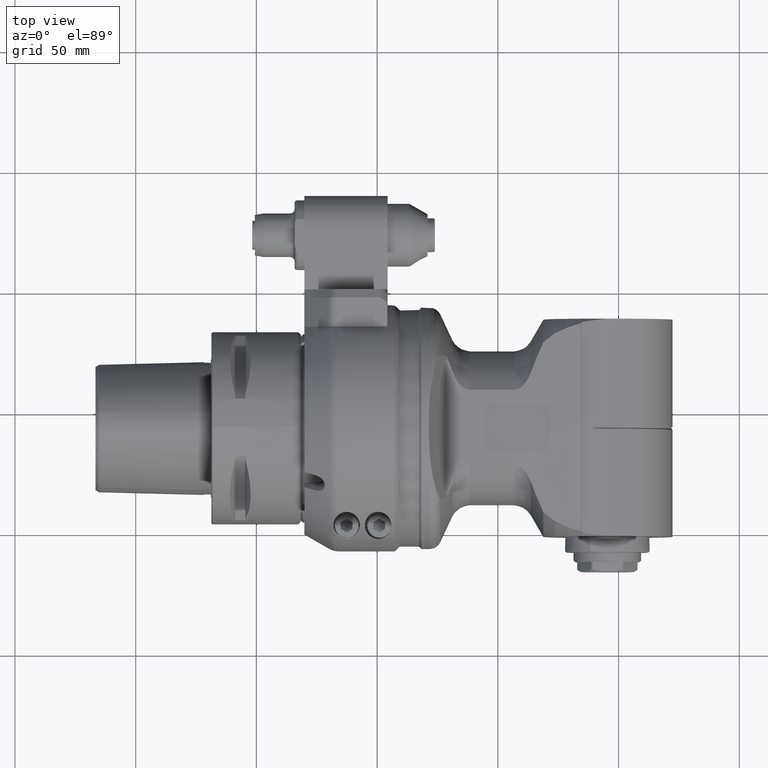
[diagram: clean part render]
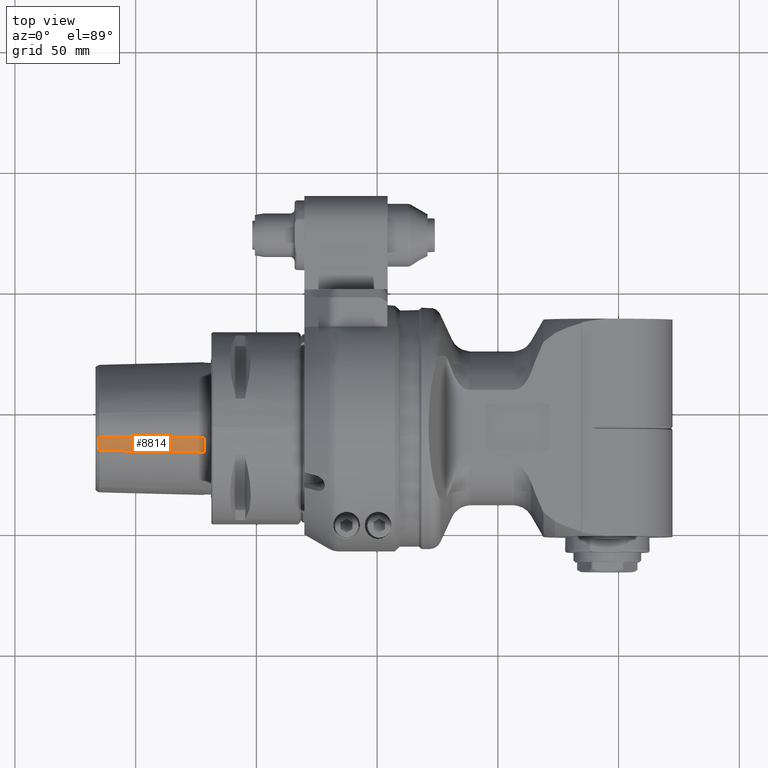
[diagram: same view with one face highlighted and labeled with its STEP entity id]
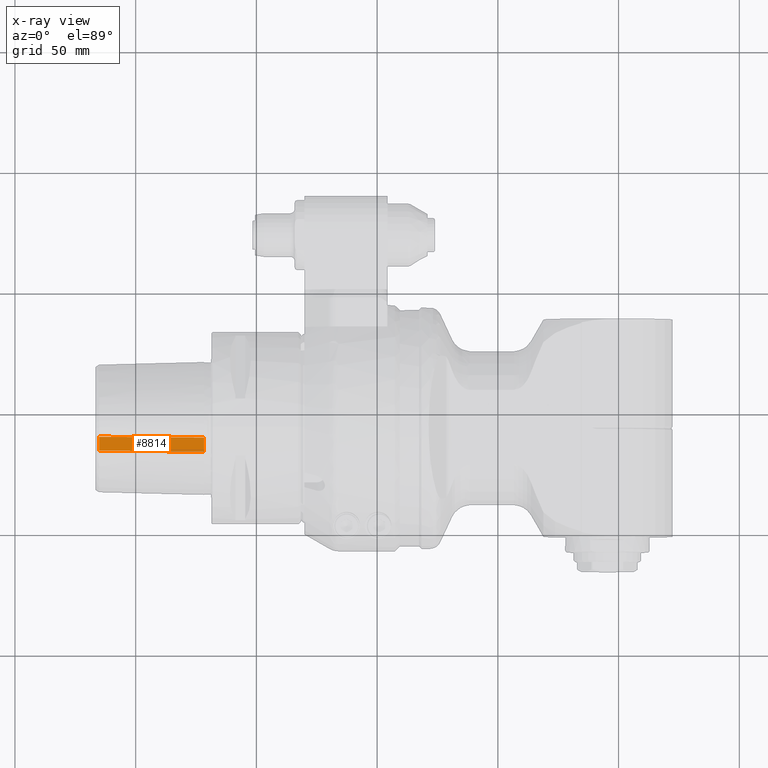
[diagram: x-ray of the same camera — body ghosted, the highlighted face saturated]
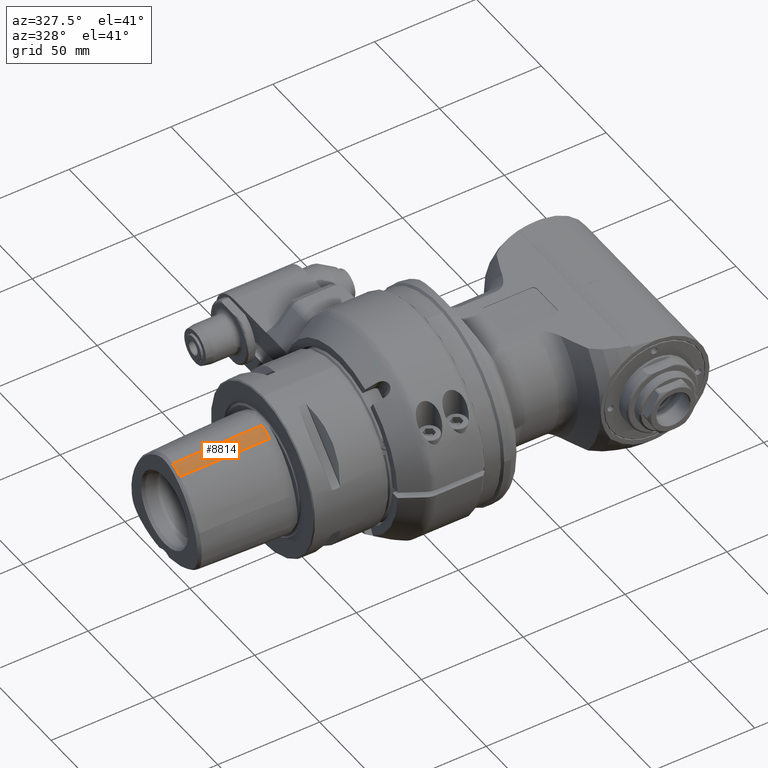
[diagram: same view with one face highlighted and labeled with its STEP entity id]
A machine part, top view. The second image highlights one B-rep face of the part: STEP entity #8814.
The next image is the same camera in x-ray: the body ghosted, the highlighted face saturated — about 0% of this face is hidden behind the body in this view.
A second angle (auxiliary view) of the same face is appended — the face is thin or edge-on in the first view.
In plain terms, the highlighted face is a freeform B-spline surface patch.
Its self-contained STEP definition (entity closure, byte-faithful):
#36=B_SPLINE_SURFACE_WITH_KNOTS('',3,3,((#60654,#60655,#60656,#60657),(#60658,
#60659,#60660,#60661),(#60662,#60663,#60664,#60665),(#60666,#60667,#60668,
#60669),(#60670,#60671,#60672,#60673),(#60674,#60675,#60676,#60677),(#60678,
#60679,#60680,#60681),(#60682,#60683,#60684,#60685),(#60686,#60687,#60688,
#60689),(#60690,#60691,#60692,#60693)),.UNSPECIFIED.,.F.,.F.,.F.,(4,1,1,
1,1,1,1,4),(4,4),(-0.01452051298034,0.,0.4000001957933,0.5000002447416,
0.6000001822672,0.8000000911336,1.,1.014021204512),(0.3837668077506,0.6087745893907),
 .UNSPECIFIED.);
#535=B_SPLINE_CURVE_WITH_KNOTS('',3,(#56977,#56978,#56979,#56980,#56981,
#56982),.UNSPECIFIED.,.F.,.F.,(4,2,4),(-0.659128630313822,-0.306557897745265,
-5.4383423463596E-5),.UNSPECIFIED.);
#564=B_SPLINE_CURVE_WITH_KNOTS('',3,(#59815,#59816,#59817,#59818,#59819,
#59820,#59821,#59822,#59823,#59824,#59825,#59826,#59827,#59828,#59829,#59830,
#59831,#59832),.UNSPECIFIED.,.F.,.F.,(4,2,2,2,2,2,2,2,4),(-0.627534763400894,
-0.598249758085073,-0.568989368502959,-0.510346976372382,-0.392572580527042,
-0.313592103343379,-0.274586396055018,-0.20613444236929,-9.99999767548054E-7),
 .UNSPECIFIED.);
#1628=FACE_OUTER_BOUND('',#2224,.T.);
#2224=EDGE_LOOP('',(#8048,#8049,#8050,#8051));
#2791=LINE('',#60653,#3358);
#2792=LINE('',#60694,#3359);
#3358=VECTOR('',#12265,43.5141947065388);
#3359=VECTOR('',#12266,43.5141957843903);
#4095=VERTEX_POINT('',#56967);
#4096=VERTEX_POINT('',#56976);
#4198=VERTEX_POINT('',#59773);
#4199=VERTEX_POINT('',#59814);
#5298=EDGE_CURVE('',#4096,#4095,#535,.T.);
#5471=EDGE_CURVE('',#4199,#4198,#564,.T.);
#5487=EDGE_CURVE('',#4096,#4198,#2791,.T.);
#5488=EDGE_CURVE('',#4095,#4199,#2792,.T.);
#8048=ORIENTED_EDGE('',*,*,#5487,.F.);
#8049=ORIENTED_EDGE('',*,*,#5298,.T.);
#8050=ORIENTED_EDGE('',*,*,#5488,.T.);
#8051=ORIENTED_EDGE('',*,*,#5471,.T.);
#8814=ADVANCED_FACE('',(#1628),#36,.T.);
#12265=DIRECTION('',(-0.999684677486109,0.0139997393578312,-0.0208459323947514));
#12266=DIRECTION('',(-0.999684640340873,0.0078955053841838,-0.0238386421858907));
#56967=CARTESIAN_POINT('',(-81.0000000003208,-4.34512318675063,28.7391449111022));
#56976=CARTESIAN_POINT('',(-80.9999999997678,-10.2207980996593,25.7755481703052));
#56977=CARTESIAN_POINT('Ctrl Pts',(-80.999999999999,-10.2207980996577,25.7755481703028));
#56978=CARTESIAN_POINT('Ctrl Pts',(-80.999999999999,-9.23870735431125,26.4352556000811));
#56979=CARTESIAN_POINT('Ctrl Pts',(-81.0000000000038,-8.2221268228982,27.0355645514729));
#56980=CARTESIAN_POINT('Ctrl Pts',(-81.0000000000038,-6.25771583904378,
28.0171834151023));
#56981=CARTESIAN_POINT('Ctrl Pts',(-80.999999999999,-5.31496701955036,28.4178520478634));
#56982=CARTESIAN_POINT('Ctrl Pts',(-80.999999999999,-4.34512318675398,28.7391449111123));
#59773=CARTESIAN_POINT('',(-124.500472606784,-9.61161077889696,24.8684543004316));
#59814=CARTESIAN_POINT('',(-124.500473052659,-4.00155661470628,27.7018255481856));
#59815=CARTESIAN_POINT('Ctrl Pts',(-124.500473041324,-4.00155661119596,
27.7018255375715));
#59816=CARTESIAN_POINT('Ctrl Pts',(-124.500469961478,-4.09448936906971,
27.6710939714498));
#59817=CARTESIAN_POINT('Ctrl Pts',(-124.500468751583,-4.18734083340511,
27.6395145952595));
#59818=CARTESIAN_POINT('Ctrl Pts',(-124.500460234254,-4.37282740407755,
27.5747112062054));
#59819=CARTESIAN_POINT('Ctrl Pts',(-124.500455465442,-4.46526286964966,
27.5415582717321));
#59820=CARTESIAN_POINT('Ctrl Pts',(-124.500443651751,-4.74214328519217,
27.4397452969568));
#59821=CARTESIAN_POINT('Ctrl Pts',(-124.500443088555,-4.9257548697678,27.3688670343833));
#59822=CARTESIAN_POINT('Ctrl Pts',(-124.500506423709,-5.47484227093612,
27.1473867700839));
#59823=CARTESIAN_POINT('Ctrl Pts',(-124.500538227255,-5.83719340135735,
26.9883994519544));
#59824=CARTESIAN_POINT('Ctrl Pts',(-124.50046015528,-6.43504030587222,26.7069401216021));
#59825=CARTESIAN_POINT('Ctrl Pts',(-124.500497571954,-6.67309183272681,
26.5896258153915));
#59826=CARTESIAN_POINT('Ctrl Pts',(-124.500457768069,-7.02447535144932,
26.4094340556717));
#59827=CARTESIAN_POINT('Ctrl Pts',(-124.500420501416,-7.14018570996116,
26.3489362021841));
#59828=CARTESIAN_POINT('Ctrl Pts',(-124.500426690757,-7.45758068227163,
26.179812046025));
#59829=CARTESIAN_POINT('Ctrl Pts',(-124.500589500824,-7.65790766129291,
26.0694921294913));
#59830=CARTESIAN_POINT('Ctrl Pts',(-124.500768330694,-8.45539478613603,
25.6164413356849));
#59831=CARTESIAN_POINT('Ctrl Pts',(-124.500459014113,-9.04139475487104,
25.2518325334434));
#59832=CARTESIAN_POINT('Ctrl Pts',(-124.500472595796,-9.61161080237807,
24.8684543353557));
#60653=CARTESIAN_POINT('',(-80.9999999993055,-10.2207981011684,25.7755481693042));
#60654=CARTESIAN_POINT('Ctrl Pts',(-80.1299905029774,-10.3125312793383,
25.740074165355));
#60655=CARTESIAN_POINT('Ctrl Pts',(-95.2101548718622,-10.1003382140691,
25.4262779168515));
#60656=CARTESIAN_POINT('Ctrl Pts',(-110.290319240752,-9.88814514880082,
25.1124816683481));
#60657=CARTESIAN_POINT('Ctrl Pts',(-125.370483609642,-9.67595208353056,
24.7986854198446));
#60658=CARTESIAN_POINT('Ctrl Pts',(-80.1299905029145,-10.2860426296683,
25.757987471975));
#60659=CARTESIAN_POINT('Ctrl Pts',(-95.2101548728922,-10.0741845824791,
25.4439702842015));
#60660=CARTESIAN_POINT('Ctrl Pts',(-110.290319242872,-9.86232653529182,
25.1299530964381));
#60661=CARTESIAN_POINT('Ctrl Pts',(-125.370483612852,-9.65046848810556,
24.8159359086746));
#60662=CARTESIAN_POINT('Ctrl Pts',(-80.1299905010569,-9.52907007933334,
26.268185953765));
#60663=CARTESIAN_POINT('Ctrl Pts',(-95.2101549032427,-9.32680735228208,
25.9478607866715));
#60664=CARTESIAN_POINT('Ctrl Pts',(-110.290319305422,-9.12454462523082,
25.6275356195781));
#60665=CARTESIAN_POINT('Ctrl Pts',(-125.370483707602,-8.92228189818056,
25.3072104524846));
#60666=CARTESIAN_POINT('Ctrl Pts',(-80.1299905012515,-8.56133967696634,
26.859417782275));
#60667=CARTESIAN_POINT('Ctrl Pts',(-95.2101549000532,-8.37184902419908,
26.5311860535015));
#60668=CARTESIAN_POINT('Ctrl Pts',(-110.290319298863,-8.18235837143182,
26.2029543247181));
#60669=CARTESIAN_POINT('Ctrl Pts',(-125.370483697663,-7.99286771866456,
25.8747225959346));
#60670=CARTESIAN_POINT('Ctrl Pts',(-80.1299904933791,-7.39295379365634,
27.476287696825));
#60671=CARTESIAN_POINT('Ctrl Pts',(-95.2101550286438,-7.22033335464708,
27.1390183547515));
#60672=CARTESIAN_POINT('Ctrl Pts',(-110.290319563914,-7.04771291563782,
26.8017490126881));
#60673=CARTESIAN_POINT('Ctrl Pts',(-125.370484099183,-6.87509247662956,
26.4644796706146));
#60674=CARTESIAN_POINT('Ctrl Pts',(-80.1299904874285,-6.60334755330334,
27.8673147795249));
#60675=CARTESIAN_POINT('Ctrl Pts',(-95.2101551258442,-6.44294100243208,
27.5240393696115));
#60676=CARTESIAN_POINT('Ctrl Pts',(-110.290319764254,-6.28253445156182,
27.1807639596981));
#60677=CARTESIAN_POINT('Ctrl Pts',(-125.370484402664,-6.12212790069156,
26.8374885497946));
#60678=CARTESIAN_POINT('Ctrl Pts',(-80.129990484888,-5.59648678525734,28.314804109555));
#60679=CARTESIAN_POINT('Ctrl Pts',(-95.2101551673246,-5.45324863479008,
27.9639126764915));
#60680=CARTESIAN_POINT('Ctrl Pts',(-110.290319849764,-5.31001048432182,
27.6130212434281));
#60681=CARTESIAN_POINT('Ctrl Pts',(-125.370484532204,-5.16677233385356,
27.2621298103646));
#60682=CARTESIAN_POINT('Ctrl Pts',(-80.1299904810023,-4.74125551432234,
28.632080872735));
#60683=CARTESIAN_POINT('Ctrl Pts',(-95.210155230795,-4.61437470003608,28.2751125204215));
#60684=CARTESIAN_POINT('Ctrl Pts',(-110.290319980595,-4.48749388575082,
27.9181441681081));
#60685=CARTESIAN_POINT('Ctrl Pts',(-125.370484730394,-4.36061307146456,
27.5611758157846));
#60686=CARTESIAN_POINT('Ctrl Pts',(-80.1299904791335,-4.29332940802134,
28.779246128875));
#60687=CARTESIAN_POINT('Ctrl Pts',(-95.2101552613351,-4.17539661770908,
28.4192441146615));
#60688=CARTESIAN_POINT('Ctrl Pts',(-110.290320043535,-4.05746382739582,
28.0592421004581));
#60689=CARTESIAN_POINT('Ctrl Pts',(-125.370484825735,-3.93953103708356,
27.6992400862546));
#60690=CARTESIAN_POINT('Ctrl Pts',(-80.1299904790145,-4.26395936907234,
28.788814456525));
#60691=CARTESIAN_POINT('Ctrl Pts',(-95.2101552632751,-4.14661474596008,
28.4286141201715));
#60692=CARTESIAN_POINT('Ctrl Pts',(-110.290320047535,-4.02927012284682,
28.0684137838181));
#60693=CARTESIAN_POINT('Ctrl Pts',(-125.370484831805,-3.91192549973356,
27.7082134474646));
#60694=CARTESIAN_POINT('',(-81.0000000009644,-4.34512318813838,28.7391449106242));